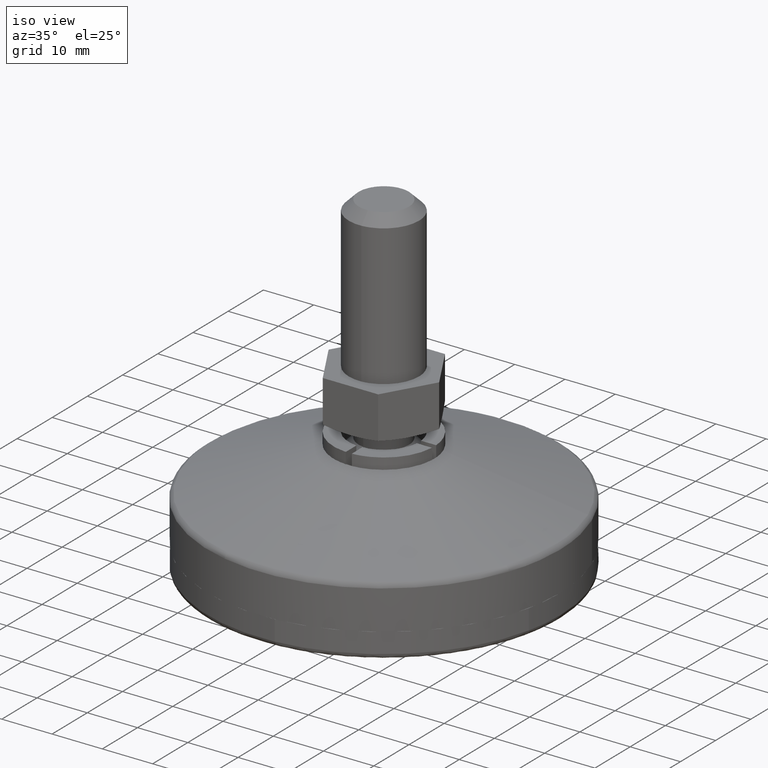
[diagram: clean part render]
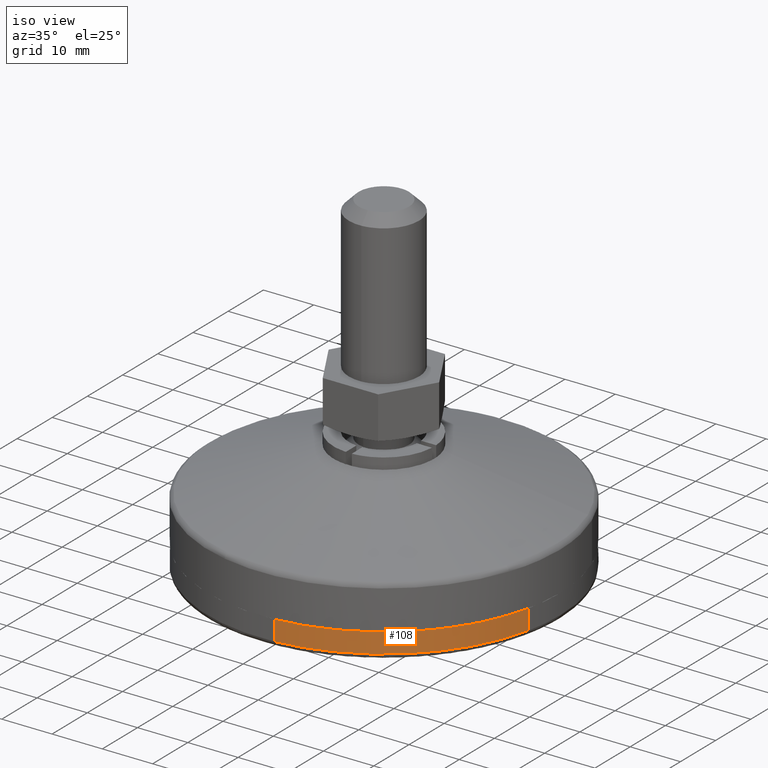
[diagram: same view with one face highlighted and labeled with its STEP entity id]
A machine part, iso view. The second image highlights one B-rep face of the part: STEP entity #108.
In plain terms, the highlighted face is a freeform B-spline surface patch.
Its self-contained STEP definition (entity closure, byte-faithful):
#44=CARTESIAN_POINT('',(34.206447917411154,-7.413940378904274,5.100000000001709));
#45=CARTESIAN_POINT('',(34.182697392038982,-7.520313505652091,5.100000000001710));
#46=CARTESIAN_POINT('',(28.524221560497537,-32.863322024244134,5.100000000001710));
#47=CARTESIAN_POINT('',(2.647486098584324,-34.899865272145846,5.100000000001709));
#48=CARTESIAN_POINT('',(2.549134317877288,-34.907605725156742,5.100000000001712));
#49=CARTESIAN_POINT('',(34.206447917411154,-7.413940378904274,0.897499999921446));
#50=CARTESIAN_POINT('',(34.182697392038982,-7.520313505652091,0.897499999921446));
#51=CARTESIAN_POINT('',(28.524221560497537,-32.863322024244134,0.897499999921446));
#52=CARTESIAN_POINT('',(2.647486098584324,-34.899865272145846,0.897499999921445));
#53=CARTESIAN_POINT('',(2.549134317877288,-34.907605725156742,0.897499999921446));
#61=(BOUNDED_SURFACE()B_SPLINE_SURFACE(2,1,((#44,#49),(#45,#50),(#46,#51),(#47,#52),(#48,#53)),.UNSPECIFIED.,.F.,.F.,.U.)B_SPLINE_SURFACE_WITH_KNOTS((3,1,1,3),(2,2),(0.0,0.230406414676581,46.306111750709213,46.536508897595589),(0.0,4.202500000080265),.UNSPECIFIED.)GEOMETRIC_REPRESENTATION_ITEM()RATIONAL_B_SPLINE_SURFACE(((0.907680227616800,0.907680227616800),(0.906977198798248,0.906977198798248),(0.765685424949238,0.765685424949238),(1.001171667566929,1.001171667566929),(1.002343335133857,1.002343335133857)))REPRESENTATION_ITEM('')SURFACE());
#62=CARTESIAN_POINT('',(34.158915734717603,-7.626826065131843,0.999999999999608));
#63=VERTEX_POINT('',#62);
#64=CARTESIAN_POINT('',(2.746052590281755,-34.892107921006392,0.999999999999502));
#65=VERTEX_POINT('',#64);
#66=CARTESIAN_POINT('',(34.158915734717603,-7.626826065131843,0.999999999999608));
#67=CARTESIAN_POINT('',(28.524239110693880,-32.863332358713649,0.999999999999801));
#68=CARTESIAN_POINT('',(2.746052590281755,-34.892107921006385,0.999999999999502));
#76=(BOUNDED_CURVE()B_SPLINE_CURVE(2,(#66,#67,#68),.UNSPECIFIED.,.F.,.U.)B_SPLINE_CURVE_WITH_KNOTS((3,3),(0.537286544577424,0.736331378062404),.UNSPECIFIED.)CURVE()GEOMETRIC_REPRESENTATION_ITEM()RATIONAL_B_SPLINE_CURVE((0.925662766264038,0.762027681955195,0.969723517761617))REPRESENTATION_ITEM(''));
#77=EDGE_CURVE('',#63,#65,#76,.T.);
#78=ORIENTED_EDGE('',*,*,#77,.F.);
#79=CARTESIAN_POINT('',(34.158915664180910,-7.626826381051620,4.999999999999801));
#80=VERTEX_POINT('',#79);
#81=CARTESIAN_POINT('',(34.158915664180910,-7.626826381051620,4.999999999999801));
#82=CARTESIAN_POINT('',(34.158915734717603,-7.626826065131843,0.999999999999608));
#83=QUASI_UNIFORM_CURVE('',1,(#81,#82),.UNSPECIFIED.,.F.,.U.);
#84=EDGE_CURVE('',#80,#63,#83,.T.);
#85=ORIENTED_EDGE('',*,*,#84,.F.);
#86=CARTESIAN_POINT('',(2.746052784867262,-34.892107905692363,4.999999999999800));
#87=VERTEX_POINT('',#86);
#88=CARTESIAN_POINT('',(34.158915664180910,-7.626826381051620,4.999999999999801));
#89=CARTESIAN_POINT('',(28.524238894149413,-32.863332231106341,4.999999999999800));
#90=CARTESIAN_POINT('',(2.746052784867262,-34.892107905692349,4.999999999999800));
#98=(BOUNDED_CURVE()B_SPLINE_CURVE(2,(#88,#89,#90),.UNSPECIFIED.,.F.,.U.)B_SPLINE_CURVE_WITH_KNOTS((3,3),(0.537286546090813,0.736331377106408),.UNSPECIFIED.)CURVE()GEOMETRIC_REPRESENTATION_ITEM()RATIONAL_B_SPLINE_CURVE((0.925662763775720,0.762027684320285,0.969723515766524))REPRESENTATION_ITEM(''));
#99=EDGE_CURVE('',#80,#87,#98,.T.);
#100=ORIENTED_EDGE('',*,*,#99,.T.);
#101=CARTESIAN_POINT('',(2.746052784867262,-34.892107905692363,4.999999999999800));
#102=CARTESIAN_POINT('',(2.746052590281755,-34.892107921006392,0.999999999999502));
#103=QUASI_UNIFORM_CURVE('',1,(#101,#102),.UNSPECIFIED.,.F.,.U.);
#104=EDGE_CURVE('',#87,#65,#103,.T.);
#105=ORIENTED_EDGE('',*,*,#104,.T.);
#106=EDGE_LOOP('',(#78,#85,#100,#105));
#107=FACE_OUTER_BOUND('',#106,.T.);
#108=ADVANCED_FACE('',(#107),#61,.T.);